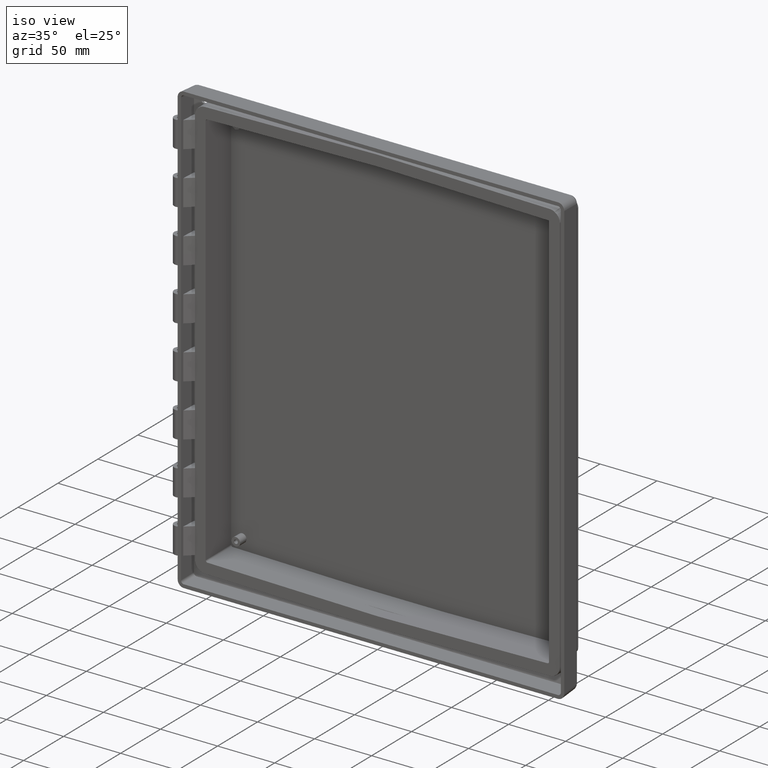
[diagram: clean part render]
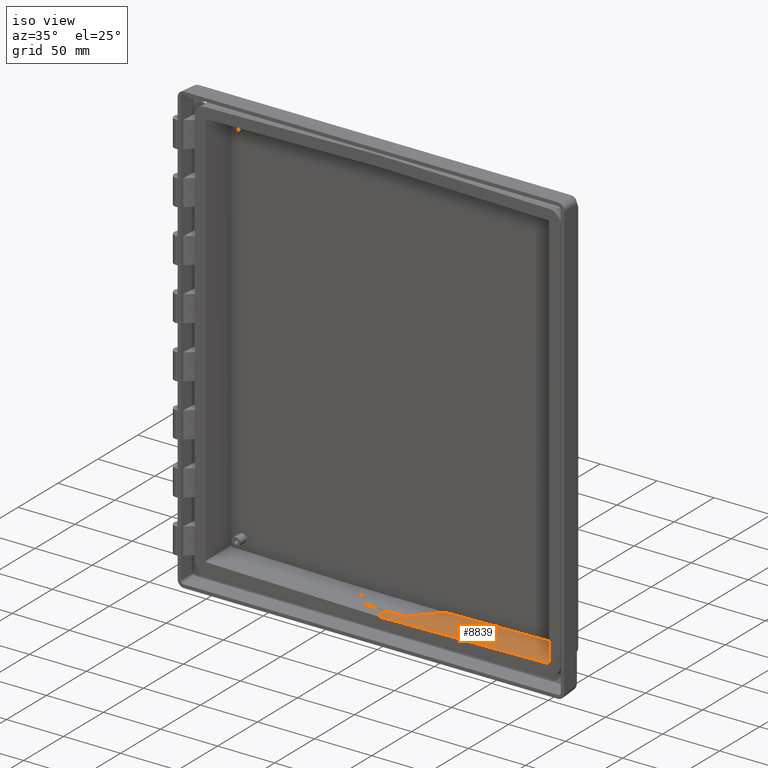
[diagram: same view with one face highlighted and labeled with its STEP entity id]
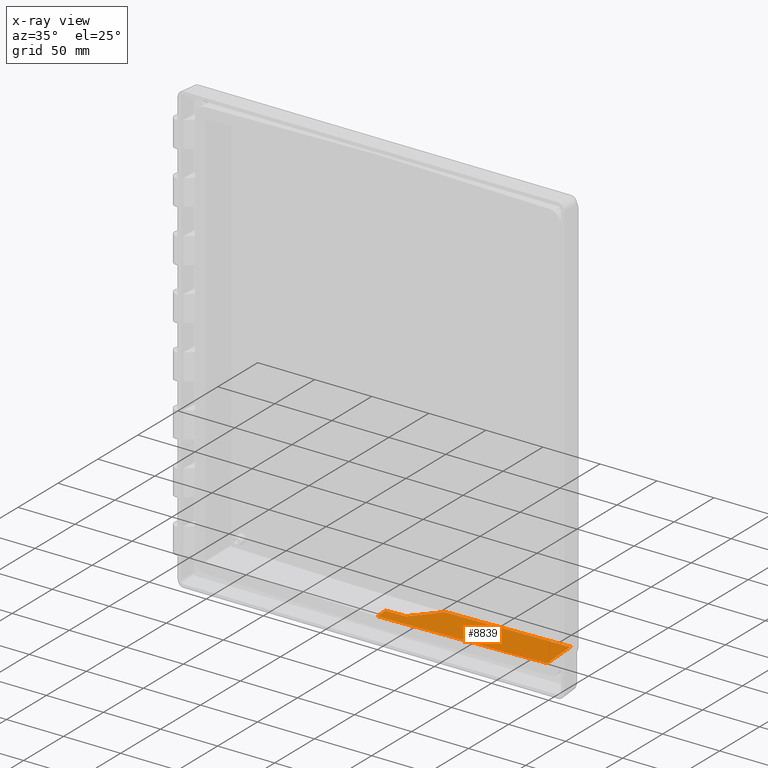
[diagram: x-ray of the same camera — body ghosted, the highlighted face saturated]
A machine part, iso view. The second image highlights one B-rep face of the part: STEP entity #8839.
The next image is the same camera in x-ray: the body ghosted, the highlighted face saturated — about 0% of this face is hidden behind the body in this view.
In plain terms, the highlighted planar face has unit normal (-0.0174, -0.0349, 0.9992).
Its self-contained STEP definition (entity closure, byte-faithful):
#1877 = EDGE_CURVE ( 'NONE', #2457, #9825, #13298, .T. ) ;
#2407 = EDGE_CURVE ( 'NONE', #2408, #2457, #4668, .T. ) ;
#2408 = VERTEX_POINT ( 'NONE', #4653 ) ;
#2457 = VERTEX_POINT ( 'NONE', #4866 ) ;
#2871 = DIRECTION ( 'NONE',  ( 0.0000000000000000000, -0.9993906415863165200, -0.03490480639812536300 ) ) ;
#2872 = VECTOR ( 'NONE', #2871, 1000.000000000000200 ) ;
#2873 = CARTESIAN_POINT ( 'NONE',  ( 0.0000000000000000000, 0.09161642111104152700, -178.1231514602791000 ) ) ;
#2874 = LINE ( 'NONE', #2873, #2872 ) ;
#2987 = CARTESIAN_POINT ( 'NONE',  ( 0.0000000000000000000, 10.23872211625146300, -177.7687527446497300 ) ) ;
#3038 = CARTESIAN_POINT ( 'NONE',  ( 3.752911288988565200, -3.755195458739436700, -178.1919982437735800 ) ) ;
#3043 = DIRECTION ( 'NONE',  ( 0.0000000000000000000, -0.9993906415863165200, -0.03490480639812537000 ) ) ;
#3044 = DIRECTION ( 'NONE',  ( -0.01744177490283053300, -0.03489949670250105200, 0.9992386149554826100 ) ) ;
#3046 = AXIS2_PLACEMENT_3D ( 'NONE', #3053, #3044, #3043 ) ;
#3048 = LINE ( 'NONE', #3038, #5384 ) ;
#3053 = CARTESIAN_POINT ( 'NONE',  ( -9.130384287730726300E-020, 3.469446951953614200E-015, -178.1263512635479200 ) ) ;
#3054 = PLANE ( 'NONE',  #3046 ) ;
#3055 = FACE_OUTER_BOUND ( 'NONE', #8840, .T. ) ;
#3142 = DIRECTION ( 'NONE',  ( -0.9998384261230575100, -0.003737334222642874300, -0.01758277511303016300 ) ) ;
#3143 = VECTOR ( 'NONE', #3142, 1000.000000000000100 ) ;
#3144 = CARTESIAN_POINT ( 'NONE',  ( -0.04454590228249413800, 10.23855560642274700, -177.7695361118034600 ) ) ;
#3145 = LINE ( 'NONE', #3144, #3143 ) ;
#3153 = CARTESIAN_POINT ( 'NONE',  ( 17.83494238276964300, 10.30538802824762000, -177.4551142877967900 ) ) ;
#4653 = CARTESIAN_POINT ( 'NONE',  ( -9.130384287730726300E-020, 3.469446951953614200E-015, -178.1263512635479200 ) ) ;
#4654 = DIRECTION ( 'NONE',  ( 0.9998476951563911600, 0.0000000000000000000, 0.01745240643728388300 ) ) ;
#4656 = VECTOR ( 'NONE', #4654, 1000.000000000000200 ) ;
#4658 = CARTESIAN_POINT ( 'NONE',  ( -9.130384287730726300E-020, 3.469446951953614200E-015, -178.1263512635479200 ) ) ;
#4668 = LINE ( 'NONE', #4658, #4656 ) ;
#4866 = CARTESIAN_POINT ( 'NONE',  ( 148.9906395393799700, 3.469446951953614200E-015, -175.5257099766913000 ) ) ;
#5382 = DIRECTION ( 'NONE',  ( -0.7071608033720852000, -0.7060837636462216100, -0.03700428204051029600 ) ) ;
#5384 = VECTOR ( 'NONE', #5382, 1000.000000000000000 ) ;
#8107 = CARTESIAN_POINT ( 'NONE',  ( 37.96020609379390000, 30.40000000000000900, -176.4020002988028200 ) ) ;
#8148 = CARTESIAN_POINT ( 'NONE',  ( 147.9290481468308900, 30.40000000000000200, -174.4824870206861100 ) ) ;
#8149 = DIRECTION ( 'NONE',  ( 0.9998476951563911600, -0.0000000000000000000, 0.01745240643728388300 ) ) ;
#8150 = VECTOR ( 'NONE', #8149, 1000.000000000000100 ) ;
#8151 = CARTESIAN_POINT ( 'NONE',  ( -0.01852732445308965700, 30.40000000000000200, -177.0649215565098000 ) ) ;
#8152 = LINE ( 'NONE', #8151, #8150 ) ;
#8778 = EDGE_CURVE ( 'NONE', #8779, #2408, #2874, .T. ) ;
#8779 = VERTEX_POINT ( 'NONE', #2987 ) ;
#8824 = ORIENTED_EDGE ( 'NONE', *, *, #8778, .T. ) ;
#8839 = ADVANCED_FACE ( 'NONE', ( #3055 ), #3054, .T. ) ;
#8840 = EDGE_LOOP ( 'NONE', ( #8841, #8842, #8843, #8844, #8847, #8824 ) ) ;
#8841 = ORIENTED_EDGE ( 'NONE', *, *, #2407, .T. ) ;
#8842 = ORIENTED_EDGE ( 'NONE', *, *, #1877, .T. ) ;
#8843 = ORIENTED_EDGE ( 'NONE', *, *, #9824, .F. ) ;
#8844 = ORIENTED_EDGE ( 'NONE', *, *, #8845, .T. ) ;
#8845 = EDGE_CURVE ( 'NONE', #9822, #8846, #3048, .T. ) ;
#8846 = VERTEX_POINT ( 'NONE', #3153 ) ;
#8847 = ORIENTED_EDGE ( 'NONE', *, *, #8848, .T. ) ;
#8848 = EDGE_CURVE ( 'NONE', #8846, #8779, #3145, .T. ) ;
#9822 = VERTEX_POINT ( 'NONE', #8107 ) ;
#9824 = EDGE_CURVE ( 'NONE', #9822, #9825, #8152, .T. ) ;
#9825 = VERTEX_POINT ( 'NONE', #8148 ) ;
#13296 = VECTOR ( 'NONE', #13361, 999.9999999999998900 ) ;
#13297 = CARTESIAN_POINT ( 'NONE',  ( 148.9924006795609200, -0.05043245628703385600, -175.5274406443270700 ) ) ;
#13298 = LINE ( 'NONE', #13297, #13296 ) ;
#13361 = DIRECTION ( 'NONE',  ( -0.03487899055459543100, 0.9988036077738138300, 0.03427548855823892700 ) ) ;